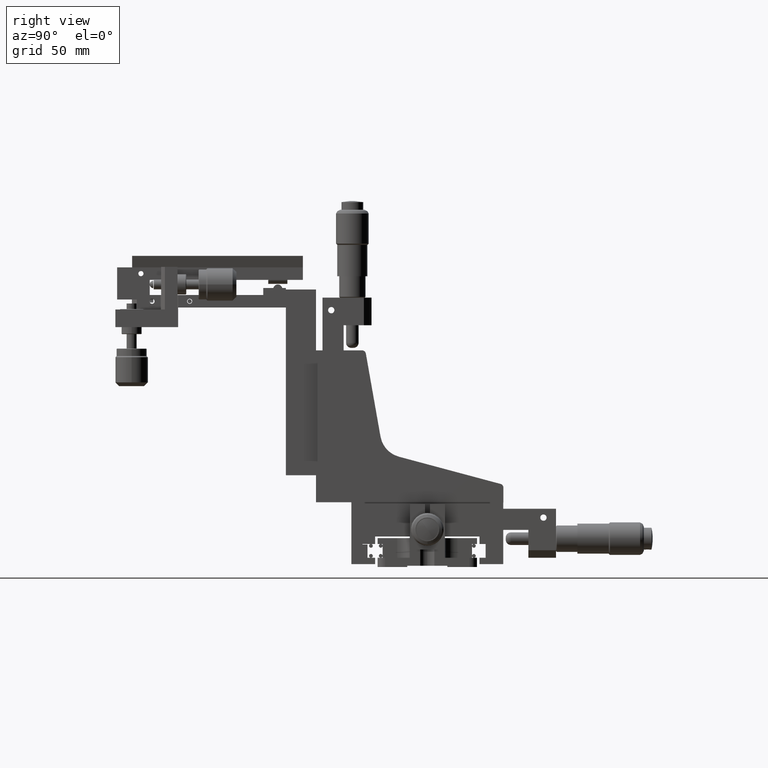
[diagram: clean part render]
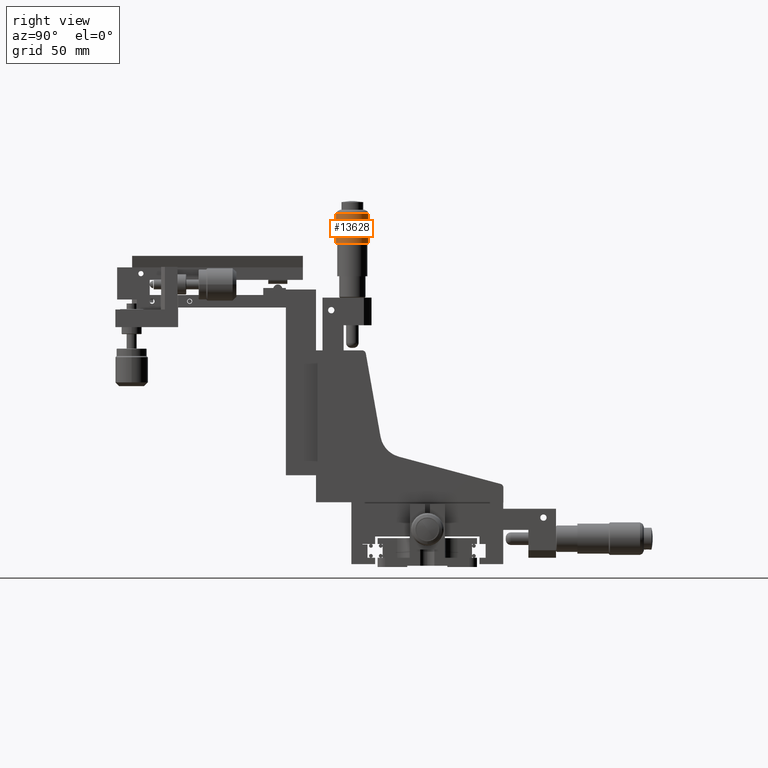
[diagram: same view with one face highlighted and labeled with its STEP entity id]
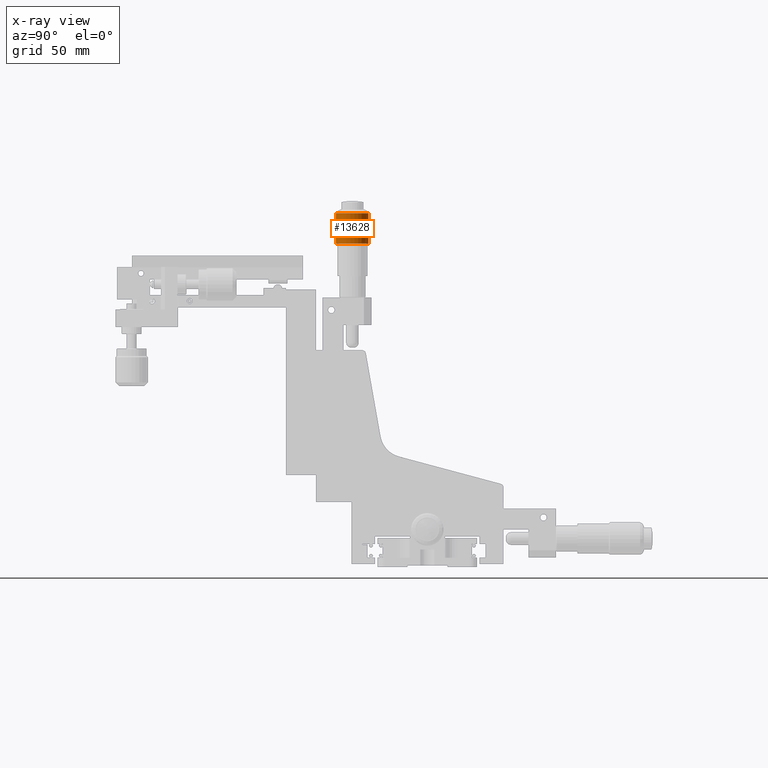
[diagram: x-ray of the same camera — body ghosted, the highlighted face saturated]
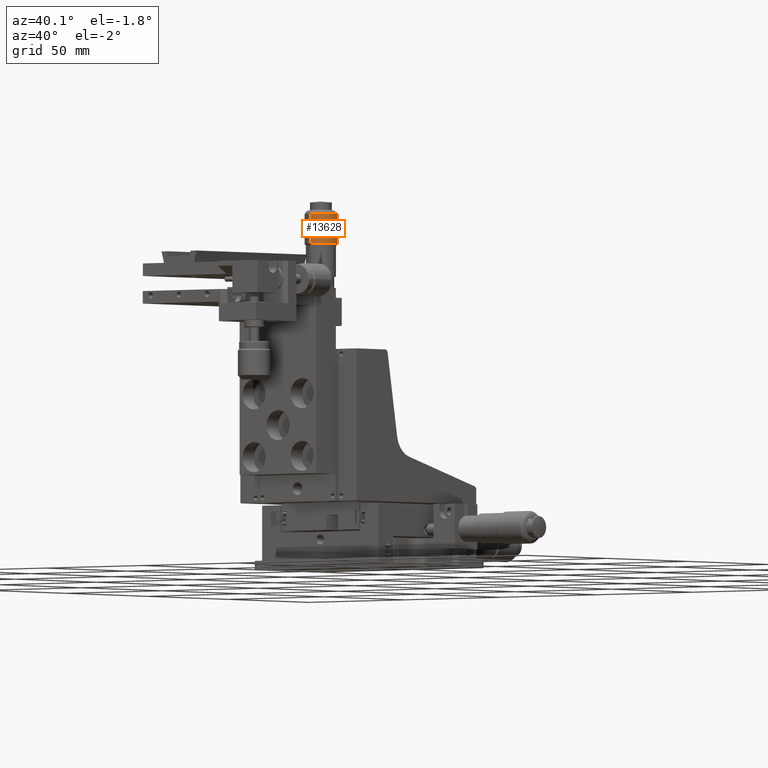
[diagram: same view with one face highlighted and labeled with its STEP entity id]
A machine part, right view. The second image highlights one B-rep face of the part: STEP entity #13628.
The next image is the same camera in x-ray: the body ghosted, the highlighted face saturated — about 0% of this face is hidden behind the body in this view.
A second angle (auxiliary view) of the same face is appended — the face is thin or edge-on in the first view.
In plain terms, the highlighted cylindrical surface (edge-blend (fillet) strip) has radius 6.5 mm, axis along (0, 0, 1).
Its self-contained STEP definition (entity closure, byte-faithful):
#13291 = VERTEX_POINT ( 'NONE', #22586 ) ;
#13354 = VERTEX_POINT ( 'NONE', #22684 ) ;
#13376 = EDGE_LOOP ( 'NONE', ( #13623, #13626, #13622, #13657 ) ) ;
#13600 = VERTEX_POINT ( 'NONE', #23069 ) ;
#13604 = VERTEX_POINT ( 'NONE', #23071 ) ;
#13619 = EDGE_CURVE ( 'NONE', #13354, #13600, #23076, .T. ) ;
#13622 = ORIENTED_EDGE ( 'NONE', *, *, #13639, .T. ) ;
#13623 = ORIENTED_EDGE ( 'NONE', *, *, #13619, .T. ) ;
#13626 = ORIENTED_EDGE ( 'NONE', *, *, #13627, .T. ) ;
#13627 = EDGE_CURVE ( 'NONE', #13600, #13291, #23077, .T. ) ;
#13628 = ADVANCED_FACE ( 'NONE', ( #23137 ), #23078, .T. ) ;
#13637 = EDGE_CURVE ( 'NONE', #13354, #13604, #23119, .T. ) ;
#13639 = EDGE_CURVE ( 'NONE', #13291, #13604, #23130, .T. ) ;
#13657 = ORIENTED_EDGE ( 'NONE', *, *, #13637, .F. ) ;
#22586 = CARTESIAN_POINT ( 'NONE',  ( -1.206346228989307100E-013, -23.34999999999995200, 140.7839615982292400 ) ) ;
#22684 = CARTESIAN_POINT ( 'NONE',  ( -1.214306433183765000E-013, -36.34999999999993700, 128.8000000000005200 ) ) ;
#23069 = CARTESIAN_POINT ( 'NONE',  ( -1.206346228989307100E-013, -23.34999999999999100, 128.8000000000004700 ) ) ;
#23071 = CARTESIAN_POINT ( 'NONE',  ( -1.214306433183765000E-013, -36.34999999999995200, 140.7839615982293000 ) ) ;
#23075 = AXIS2_PLACEMENT_3D ( 'NONE', #23088, #23139, #23138 ) ;
#23076 = CIRCLE ( 'NONE', #23075, 6.499999999999999100 ) ;
#23077 = LINE ( 'NONE', #23129, #23128 ) ;
#23078 = CYLINDRICAL_SURFACE ( 'NONE', #23133, 6.499999999999995600 ) ;
#23082 = DIRECTION ( 'NONE',  ( 3.944304526105059000E-031, 2.484711615216907800E-015, 1.000000000000000000 ) ) ;
#23083 = CARTESIAN_POINT ( 'NONE',  ( -1.214306433183765000E-013, -29.85000000000001200, 115.8000000000005100 ) ) ;
#23088 = CARTESIAN_POINT ( 'NONE',  ( -1.214306433183765000E-013, -29.84999999999998000, 128.8000000000004900 ) ) ;
#23118 = CARTESIAN_POINT ( 'NONE',  ( -1.214306433183765000E-013, -36.35000000000000900, 115.8000000000005200 ) ) ;
#23119 = LINE ( 'NONE', #23118, #23179 ) ;
#23120 = DIRECTION ( 'NONE',  ( 0.0000000000000000000, -1.000000000000000000, 2.135044278125302500E-015 ) ) ;
#23127 = DIRECTION ( 'NONE',  ( 3.944304526105059000E-031, 2.484711615216907800E-015, 1.000000000000000000 ) ) ;
#23128 = VECTOR ( 'NONE', #23127, 1000.000000000000000 ) ;
#23129 = CARTESIAN_POINT ( 'NONE',  ( -1.206346228989307100E-013, -23.35000000000001200, 115.8000000000004900 ) ) ;
#23130 = CIRCLE ( 'NONE', #23173, 6.499999999999999100 ) ;
#23133 = AXIS2_PLACEMENT_3D ( 'NONE', #23083, #23082, #23120 ) ;
#23137 = FACE_OUTER_BOUND ( 'NONE', #13376, .T. ) ;
#23138 = DIRECTION ( 'NONE',  ( 0.0000000000000000000, 1.000000000000000000, -4.270088556250602700E-015 ) ) ;
#23139 = DIRECTION ( 'NONE',  ( 3.944304526105059000E-031, 2.484711615216907800E-015, 1.000000000000000000 ) ) ;
#23167 = DIRECTION ( 'NONE',  ( 0.0000000000000000000, 1.000000000000000000, -4.270088556250602700E-015 ) ) ;
#23168 = DIRECTION ( 'NONE',  ( -3.944304526105059000E-031, -2.484711615216907800E-015, -1.000000000000000000 ) ) ;
#23173 = AXIS2_PLACEMENT_3D ( 'NONE', #23182, #23168, #23167 ) ;
#23178 = DIRECTION ( 'NONE',  ( 3.944304526105059000E-031, 2.484711615216907800E-015, 1.000000000000000000 ) ) ;
#23179 = VECTOR ( 'NONE', #23178, 1000.000000000000000 ) ;
#23182 = CARTESIAN_POINT ( 'NONE',  ( -1.214306433183765000E-013, -29.84999999999994800, 140.7839615982292700 ) ) ;